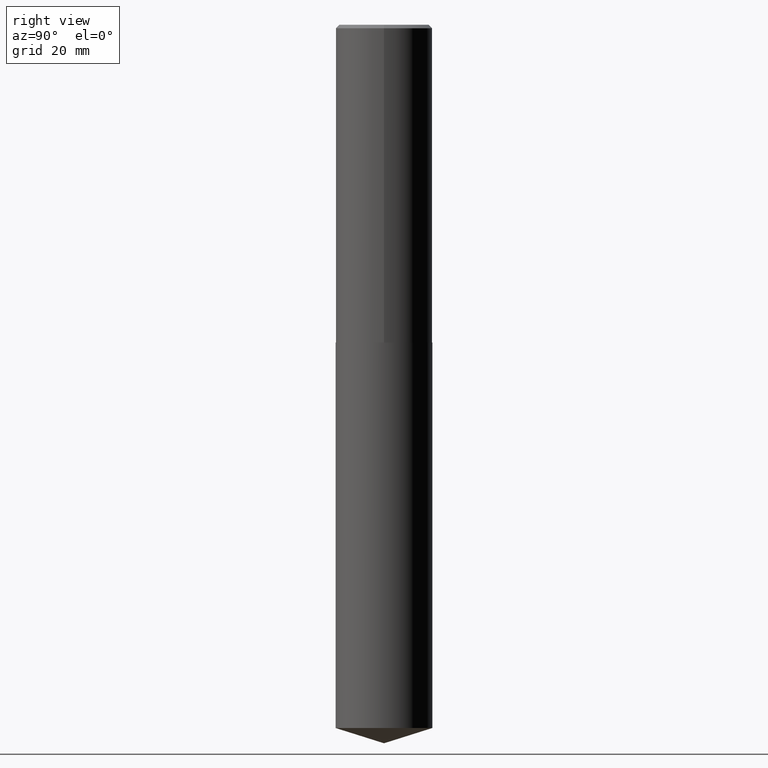
[diagram: clean part render]
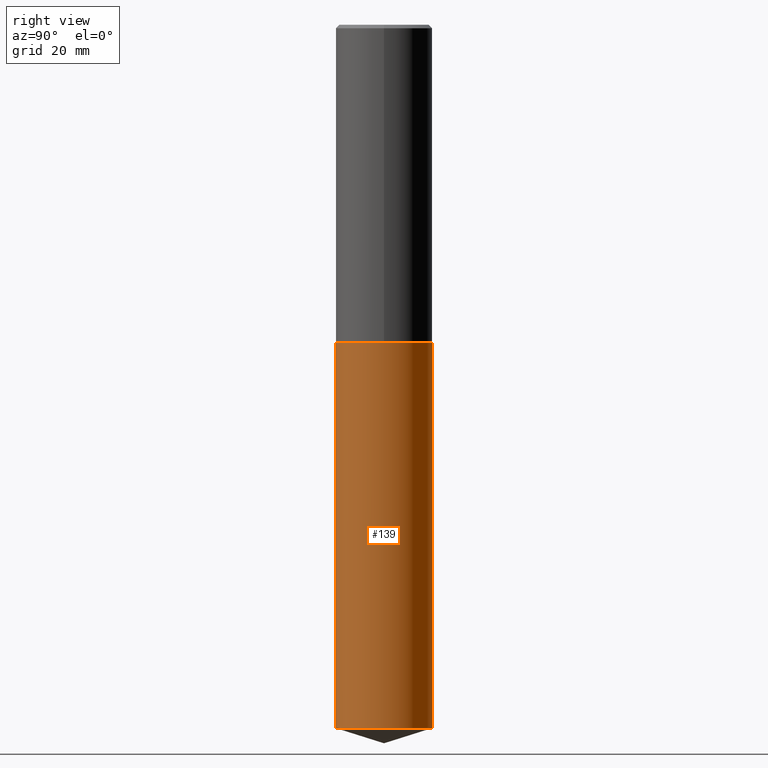
[diagram: same view with one face highlighted and labeled with its STEP entity id]
A machine part, right view. The second image highlights one B-rep face of the part: STEP entity #139.
In plain terms, the highlighted cylindrical surface (partial cylindrical patch) has radius 11.1125 mm, axis along (-0, 0, 1).
Its self-contained STEP definition (entity closure, byte-faithful):
#2 = CARTESIAN_POINT ( 'NONE',  ( -3.055046171487670688E-15, -0.4375000000000099920, -2.874999999999998224 ) ) ;
#3 = EDGE_CURVE ( 'NONE', #240, #73, #84, .T. ) ;
#4 = DIRECTION ( 'NONE',  ( -2.444757638973423254E-29, 3.492499770767442833E-15, 1.000000000000000000 ) ) ;
#9 = FACE_OUTER_BOUND ( 'NONE', #261, .T. ) ;
#33 = CARTESIAN_POINT ( 'NONE',  ( 7.030722817782267716E-29, -1.003800884917404311E-14, -2.875000000000000000 ) ) ;
#73 = VERTEX_POINT ( 'NONE', #2 ) ;
#84 = LINE ( 'NONE', #119, #182 ) ;
#98 = LINE ( 'NONE', #162, #323 ) ;
#119 = CARTESIAN_POINT ( 'NONE',  ( -3.055046171487670688E-15, -0.4375000000000099920, -2.874999999999998224 ) ) ;
#136 = CYLINDRICAL_SURFACE ( 'NONE', #209, 0.4375000000000000000 ) ;
#139 = ADVANCED_FACE ( 'NONE', ( #9 ), #136, .T. ) ;
#141 = EDGE_CURVE ( 'NONE', #240, #272, #251, .T. ) ;
#162 = CARTESIAN_POINT ( 'NONE',  ( 3.108624468950508127E-15, 0.4374999999999899525, -2.875000000000001332 ) ) ;
#169 = DIRECTION ( 'NONE',  ( -2.444757638973423254E-29, 3.492499770767442833E-15, 1.000000000000000000 ) ) ;
#172 = CARTESIAN_POINT ( 'NONE',  ( 1.555573151789238783E-28, -2.221655385350717399E-14, -6.362056779865446821 ) ) ;
#180 = CARTESIAN_POINT ( 'NONE',  ( 3.108624468950594508E-15, 0.4374999999999900080, -2.875000000000001332 ) ) ;
#182 = VECTOR ( 'NONE', #214, 39.37007874015748143 ) ;
#200 = DIRECTION ( 'NONE',  ( -6.982962677686265133E-15, -1.000000000000000000, 3.746534391310989557E-15 ) ) ;
#209 = AXIS2_PLACEMENT_3D ( 'NONE', #306, #313, #345 ) ;
#214 = DIRECTION ( 'NONE',  ( -2.444757638973423254E-29, 3.492499770767442833E-15, 1.000000000000000000 ) ) ;
#240 = VERTEX_POINT ( 'NONE', #382 ) ;
#251 = CIRCLE ( 'NONE', #350, 0.4375000000000000000 ) ;
#257 = VERTEX_POINT ( 'NONE', #180 ) ;
#261 = EDGE_LOOP ( 'NONE', ( #290, #372, #362, #322 ) ) ;
#272 = VERTEX_POINT ( 'NONE', #356 ) ;
#278 = CIRCLE ( 'NONE', #298, 0.4375000000000000000 ) ;
#290 = ORIENTED_EDGE ( 'NONE', *, *, #141, .T. ) ;
#298 = AXIS2_PLACEMENT_3D ( 'NONE', #33, #346, #200 ) ;
#306 = CARTESIAN_POINT ( 'NONE',  ( 7.030722817782267716E-29, -1.003800884917404311E-14, -2.875000000000000000 ) ) ;
#313 = DIRECTION ( 'NONE',  ( -2.444757638973423254E-29, 3.492499770767442833E-15, 1.000000000000000000 ) ) ;
#322 = ORIENTED_EDGE ( 'NONE', *, *, #3, .F. ) ;
#323 = VECTOR ( 'NONE', #169, 39.37007874015748143 ) ;
#345 = DIRECTION ( 'NONE',  ( -6.982962677686265133E-15, -1.000000000000000000, 3.746534391310989557E-15 ) ) ;
#346 = DIRECTION ( 'NONE',  ( -2.444757638973423254E-29, 3.492499770767442833E-15, 1.000000000000000000 ) ) ;
#350 = AXIS2_PLACEMENT_3D ( 'NONE', #172, #4, #370 ) ;
#356 = CARTESIAN_POINT ( 'NONE',  ( 3.108624468950594902E-15, 0.4374999999999779066, -6.362056779865447709 ) ) ;
#362 = ORIENTED_EDGE ( 'NONE', *, *, #368, .F. ) ;
#368 = EDGE_CURVE ( 'NONE', #73, #257, #278, .T. ) ;
#370 = DIRECTION ( 'NONE',  ( -6.982962677686265133E-15, -1.000000000000000000, 2.497689594207326371E-15 ) ) ;
#372 = ORIENTED_EDGE ( 'NONE', *, *, #386, .T. ) ;
#382 = CARTESIAN_POINT ( 'NONE',  ( -3.055046171487586675E-15, -0.4375000000000223710, -6.362056779865445932 ) ) ;
#386 = EDGE_CURVE ( 'NONE', #272, #257, #98, .T. ) ;